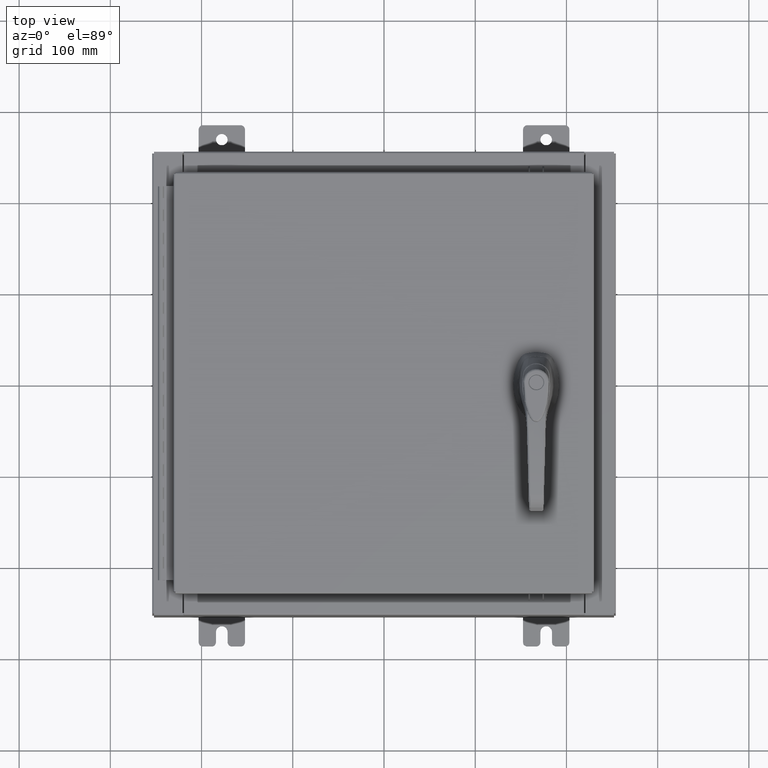
[diagram: clean part render]
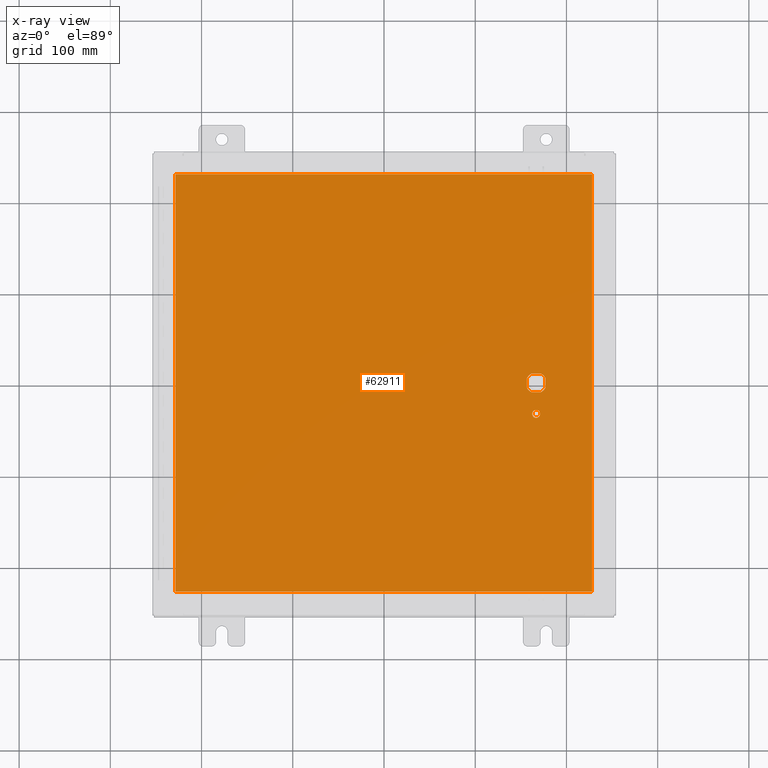
[diagram: x-ray — body ghosted, one internal face saturated and labeled with its STEP entity id]
A machine part, top view, then the same camera in x-ray: the body is ghosted and one INTERNAL B-rep face — a face not visible from any outside direction — is saturated and labeled: STEP entity #62911.
In plain terms, the highlighted planar face has unit normal (0, 0, -1).
Its self-contained STEP definition (entity closure, byte-faithful):
#668 = CARTESIAN_POINT ( 'NONE',  ( 8.990299999999999500, -9.006299999999999500, -0.07470000000000076600 ) ) ;
#1520 = EDGE_CURVE ( 'NONE', #14180, #13373, #46636, .T. ) ;
#2578 = FACE_BOUND ( 'NONE', #75217, .T. ) ;
#4094 = CARTESIAN_POINT ( 'NONE',  ( 8.990299999999999500, -9.006299999999999500, -0.07470000000000000300 ) ) ;
#4202 = CARTESIAN_POINT ( 'NONE',  ( 6.577999999999999400, -1.338000000000000100, -0.07470000000000003000 ) ) ;
#6439 = CARTESIAN_POINT ( 'NONE',  ( 6.980999999999925300, 1.904937449034470600E-014, -0.07470000000000003000 ) ) ;
#6607 = DIRECTION ( 'NONE',  ( -0.0000000000000000000, -0.0000000000000000000, 1.000000000000000000 ) ) ;
#11093 = AXIS2_PLACEMENT_3D ( 'NONE', #49940, #42916, #84951 ) ;
#11715 = CARTESIAN_POINT ( 'NONE',  ( 6.175000000000073500, -0.2002273707563079800, -0.07470000000000003000 ) ) ;
#12669 = DIRECTION ( 'NONE',  ( -1.000000000000000000, 0.0000000000000000000, 0.0000000000000000000 ) ) ;
#13373 = VERTEX_POINT ( 'NONE', #19879 ) ;
#14180 = VERTEX_POINT ( 'NONE', #20847 ) ;
#14571 = VECTOR ( 'NONE', #16972, 39.37007874015748100 ) ;
#16746 = VERTEX_POINT ( 'NONE', #29139 ) ;
#16843 = VERTEX_POINT ( 'NONE', #21390 ) ;
#16972 = DIRECTION ( 'NONE',  ( -1.000000000000000000, -0.0000000000000000000, -0.0000000000000000000 ) ) ;
#17103 = ORIENTED_EDGE ( 'NONE', *, *, #50750, .F. ) ;
#17350 = EDGE_CURVE ( 'NONE', #16843, #13373, #54881, .T. ) ;
#17986 = CARTESIAN_POINT ( 'NONE',  ( 6.749500000000001200, -1.338000000000000100, -0.07470000000000003000 ) ) ;
#18020 = CARTESIAN_POINT ( 'NONE',  ( 0.0000000000000000000, -0.4029999999999252000, -0.07470000000000003000 ) ) ;
#18571 = EDGE_CURVE ( 'NONE', #23281, #95156, #54772, .T. ) ;
#19879 = CARTESIAN_POINT ( 'NONE',  ( 6.980999999999925300, -0.2002273707563075900, -0.07470000000000003000 ) ) ;
#20847 = CARTESIAN_POINT ( 'NONE',  ( 6.778227370756309400, -0.4029999999999252000, -0.07470000000000003000 ) ) ;
#21390 = CARTESIAN_POINT ( 'NONE',  ( 6.980999999999925300, 0.2002273707563080300, -0.07470000000000003000 ) ) ;
#21628 = DIRECTION ( 'NONE',  ( -0.0000000000000000000, -0.0000000000000000000, 1.000000000000000000 ) ) ;
#22971 = CARTESIAN_POINT ( 'NONE',  ( 6.778227370756309400, 0.4029999999999250300, -0.07470000000000003000 ) ) ;
#23281 = VERTEX_POINT ( 'NONE', #66699 ) ;
#23395 = ORIENTED_EDGE ( 'NONE', *, *, #65361, .T. ) ;
#23438 = DIRECTION ( 'NONE',  ( 2.728745808672813300E-015, -1.000000000000000000, 0.0000000000000000000 ) ) ;
#25085 = CARTESIAN_POINT ( 'NONE',  ( 6.175000000000073500, 0.2002273707563080300, -0.07470000000000003000 ) ) ;
#25280 = EDGE_CURVE ( 'NONE', #46272, #47349, #81938, .T. ) ;
#26489 = DIRECTION ( 'NONE',  ( 1.000000000000000000, 0.0000000000000000000, 0.0000000000000000000 ) ) ;
#29139 = CARTESIAN_POINT ( 'NONE',  ( 6.377772629243690300, -0.4029999999999250300, -0.07470000000000003000 ) ) ;
#29161 = AXIS2_PLACEMENT_3D ( 'NONE', #72123, #21628, #80649 ) ;
#30894 = ORIENTED_EDGE ( 'NONE', *, *, #1520, .T. ) ;
#31260 = CARTESIAN_POINT ( 'NONE',  ( 8.990299999999997700, 9.006299999999999500, -0.07470000000000000300 ) ) ;
#31360 = AXIS2_PLACEMENT_3D ( 'NONE', #57128, #6607, #65611 ) ;
#32317 = DIRECTION ( 'NONE',  ( -0.0000000000000000000, -0.0000000000000000000, 1.000000000000000000 ) ) ;
#34747 = CARTESIAN_POINT ( 'NONE',  ( 6.175000000000073500, 0.0000000000000000000, -0.07470000000000003000 ) ) ;
#35388 = LINE ( 'NONE', #34747, #80283 ) ;
#37253 = LINE ( 'NONE', #99323, #57038 ) ;
#37283 = VERTEX_POINT ( 'NONE', #22971 ) ;
#39471 = CARTESIAN_POINT ( 'NONE',  ( 0.0000000000000000000, 0.0000000000000000000, -0.07470000000000000300 ) ) ;
#40194 = ORIENTED_EDGE ( 'NONE', *, *, #17350, .F. ) ;
#41785 = DIRECTION ( 'NONE',  ( 0.0000000000000000000, -1.000000000000000000, 0.0000000000000000000 ) ) ;
#42225 = LINE ( 'NONE', #18020, #64629 ) ;
#42420 = CARTESIAN_POINT ( 'NONE',  ( 8.990300000000001300, 9.006299999999999500, -0.07470000000000021100 ) ) ;
#42462 = LINE ( 'NONE', #100594, #87341 ) ;
#42916 = DIRECTION ( 'NONE',  ( -0.0000000000000000000, -0.0000000000000000000, 1.000000000000000000 ) ) ;
#42949 = ORIENTED_EDGE ( 'NONE', *, *, #104601, .T. ) ;
#43256 = DIRECTION ( 'NONE',  ( 0.0000000000000000000, -1.000000000000000000, 0.0000000000000000000 ) ) ;
#43582 = EDGE_LOOP ( 'NONE', ( #30894, #40194, #42949, #59246, #86970, #85902, #57361, #89437 ) ) ;
#44506 = CARTESIAN_POINT ( 'NONE',  ( -8.990299999999999500, -9.006299999999999500, -0.07470000000000021100 ) ) ;
#46110 = CIRCLE ( 'NONE', #29161, 0.4499999999999156900 ) ;
#46272 = VERTEX_POINT ( 'NONE', #31260 ) ;
#46636 = CIRCLE ( 'NONE', #11093, 0.4499999999999156900 ) ;
#47349 = VERTEX_POINT ( 'NONE', #91897 ) ;
#47944 = PLANE ( 'NONE',  #67234 ) ;
#48331 = EDGE_CURVE ( 'NONE', #101208, #46272, #77921, .T. ) ;
#49094 = CARTESIAN_POINT ( 'NONE',  ( 6.577999999999999400, -1.338000000000000100, -0.07470000000000003000 ) ) ;
#49940 = CARTESIAN_POINT ( 'NONE',  ( 6.577999999999999400, 0.0000000000000000000, -0.07470000000000003000 ) ) ;
#50052 = DIRECTION ( 'NONE',  ( -1.000000000000000000, 0.0000000000000000000, 0.0000000000000000000 ) ) ;
#50062 = VECTOR ( 'NONE', #103490, 39.37007874015748100 ) ;
#50750 = EDGE_CURVE ( 'NONE', #97180, #101208, #94984, .T. ) ;
#52231 = AXIS2_PLACEMENT_3D ( 'NONE', #82893, #32317, #91360 ) ;
#53347 = VERTEX_POINT ( 'NONE', #11715 ) ;
#54071 = CARTESIAN_POINT ( 'NONE',  ( 6.377772629243690300, 0.4029999999999252000, -0.07470000000000003000 ) ) ;
#54772 = CIRCLE ( 'NONE', #61343, 0.1715000000000011500 ) ;
#54881 = LINE ( 'NONE', #6439, #74672 ) ;
#56423 = DIRECTION ( 'NONE',  ( -1.000000000000000000, 0.0000000000000000000, -0.0000000000000000000 ) ) ;
#57038 = VECTOR ( 'NONE', #41785, 39.37007874015748100 ) ;
#57128 = CARTESIAN_POINT ( 'NONE',  ( 6.577999999999999400, 0.0000000000000000000, -0.07470000000000003000 ) ) ;
#57361 = ORIENTED_EDGE ( 'NONE', *, *, #93029, .T. ) ;
#57593 = DIRECTION ( 'NONE',  ( -1.000000000000000000, 0.0000000000000000000, 0.0000000000000000000 ) ) ;
#59246 = ORIENTED_EDGE ( 'NONE', *, *, #68789, .T. ) ;
#59663 = DIRECTION ( 'NONE',  ( 0.0000000000000000000, 1.000000000000000000, 0.0000000000000000000 ) ) ;
#61343 = AXIS2_PLACEMENT_3D ( 'NONE', #49094, #108118, #57593 ) ;
#61438 = EDGE_LOOP ( 'NONE', ( #62151, #17103, #81335, #100858 ) ) ;
#62151 = ORIENTED_EDGE ( 'NONE', *, *, #48331, .F. ) ;
#62911 = ADVANCED_FACE ( 'NONE', ( #2578, #89687, #67240 ), #47944, .T. ) ;
#63201 = DIRECTION ( 'NONE',  ( -0.0000000000000000000, -0.0000000000000000000, 1.000000000000000000 ) ) ;
#64332 = CIRCLE ( 'NONE', #52231, 0.4499999999999156900 ) ;
#64629 = VECTOR ( 'NONE', #26489, 39.37007874015748100 ) ;
#65361 = EDGE_CURVE ( 'NONE', #95156, #23281, #67151, .T. ) ;
#65611 = DIRECTION ( 'NONE',  ( -1.000000000000000000, 8.881784197001256300E-016, 0.0000000000000000000 ) ) ;
#66699 = CARTESIAN_POINT ( 'NONE',  ( 6.406499999999998500, -1.338000000000000100, -0.07470000000000003000 ) ) ;
#67151 = CIRCLE ( 'NONE', #84976, 0.1715000000000011500 ) ;
#67234 = AXIS2_PLACEMENT_3D ( 'NONE', #39471, #106953, #56423 ) ;
#67240 = FACE_BOUND ( 'NONE', #43582, .T. ) ;
#68078 = EDGE_CURVE ( 'NONE', #47349, #97180, #37253, .T. ) ;
#68789 = EDGE_CURVE ( 'NONE', #37283, #72556, #42462, .T. ) ;
#72123 = CARTESIAN_POINT ( 'NONE',  ( 6.577999999999999400, 0.0000000000000000000, -0.07470000000000003000 ) ) ;
#72556 = VERTEX_POINT ( 'NONE', #54071 ) ;
#74672 = VECTOR ( 'NONE', #23438, 39.37007874015748100 ) ;
#75217 = EDGE_LOOP ( 'NONE', ( #23395, #94340 ) ) ;
#77921 = LINE ( 'NONE', #668, #97684 ) ;
#80283 = VECTOR ( 'NONE', #43256, 39.37007874015748100 ) ;
#80620 = EDGE_CURVE ( 'NONE', #16746, #14180, #42225, .T. ) ;
#80649 = DIRECTION ( 'NONE',  ( -1.000000000000000000, 0.0000000000000000000, 0.0000000000000000000 ) ) ;
#81335 = ORIENTED_EDGE ( 'NONE', *, *, #68078, .F. ) ;
#81938 = LINE ( 'NONE', #42420, #14571 ) ;
#82783 = VERTEX_POINT ( 'NONE', #25085 ) ;
#82893 = CARTESIAN_POINT ( 'NONE',  ( 6.577999999999999400, 0.0000000000000000000, -0.07470000000000003000 ) ) ;
#84613 = EDGE_CURVE ( 'NONE', #72556, #82783, #64332, .T. ) ;
#84951 = DIRECTION ( 'NONE',  ( -1.000000000000000000, 1.776356839400251300E-015, 0.0000000000000000000 ) ) ;
#84976 = AXIS2_PLACEMENT_3D ( 'NONE', #4202, #63201, #12669 ) ;
#85902 = ORIENTED_EDGE ( 'NONE', *, *, #107548, .T. ) ;
#86970 = ORIENTED_EDGE ( 'NONE', *, *, #84613, .T. ) ;
#87341 = VECTOR ( 'NONE', #50052, 39.37007874015748100 ) ;
#89437 = ORIENTED_EDGE ( 'NONE', *, *, #80620, .T. ) ;
#89687 = FACE_OUTER_BOUND ( 'NONE', #61438, .T. ) ;
#91360 = DIRECTION ( 'NONE',  ( -1.000000000000000000, 0.0000000000000000000, 0.0000000000000000000 ) ) ;
#91897 = CARTESIAN_POINT ( 'NONE',  ( -8.990299999999997700, 9.006299999999997800, -0.07470000000000000300 ) ) ;
#93029 = EDGE_CURVE ( 'NONE', #53347, #16746, #97930, .T. ) ;
#94340 = ORIENTED_EDGE ( 'NONE', *, *, #18571, .T. ) ;
#94984 = LINE ( 'NONE', #44506, #50062 ) ;
#95156 = VERTEX_POINT ( 'NONE', #17986 ) ;
#97180 = VERTEX_POINT ( 'NONE', #101845 ) ;
#97684 = VECTOR ( 'NONE', #59663, 39.37007874015748100 ) ;
#97930 = CIRCLE ( 'NONE', #31360, 0.4499999999999156900 ) ;
#99323 = CARTESIAN_POINT ( 'NONE',  ( -8.990299999999997700, 9.006299999999999500, -0.07470000000000019700 ) ) ;
#100594 = CARTESIAN_POINT ( 'NONE',  ( 0.0000000000000000000, 0.4029999999999252000, -0.07470000000000003000 ) ) ;
#100858 = ORIENTED_EDGE ( 'NONE', *, *, #25280, .F. ) ;
#101208 = VERTEX_POINT ( 'NONE', #4094 ) ;
#101845 = CARTESIAN_POINT ( 'NONE',  ( -8.990299999999997700, -9.006299999999999500, -0.07470000000000000300 ) ) ;
#103490 = DIRECTION ( 'NONE',  ( 1.000000000000000000, -0.0000000000000000000, -0.0000000000000000000 ) ) ;
#104601 = EDGE_CURVE ( 'NONE', #16843, #37283, #46110, .T. ) ;
#106953 = DIRECTION ( 'NONE',  ( 0.0000000000000000000, 0.0000000000000000000, -1.000000000000000000 ) ) ;
#107548 = EDGE_CURVE ( 'NONE', #82783, #53347, #35388, .T. ) ;
#108118 = DIRECTION ( 'NONE',  ( -0.0000000000000000000, -0.0000000000000000000, 1.000000000000000000 ) ) ;